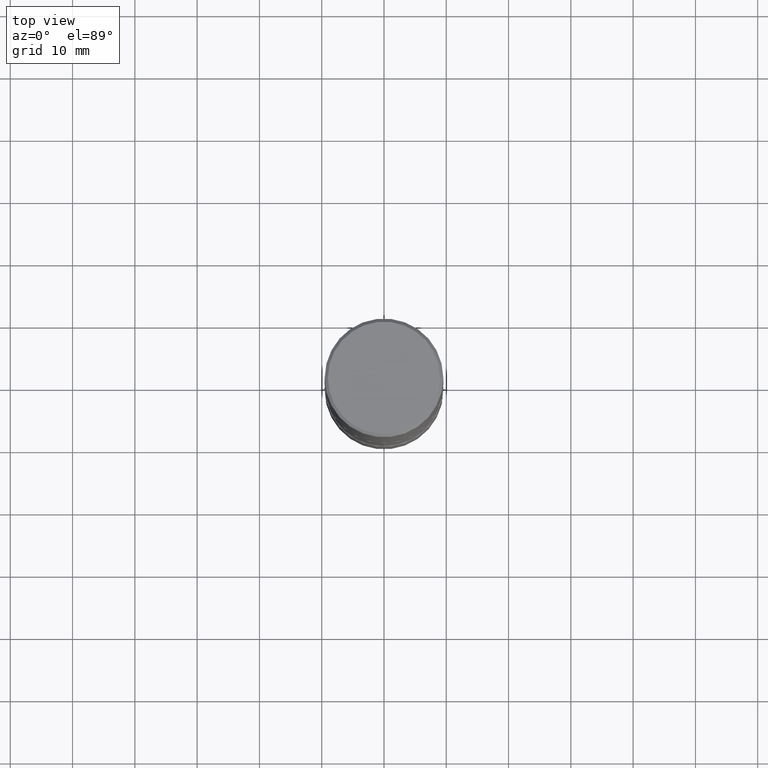
[diagram: clean part render]
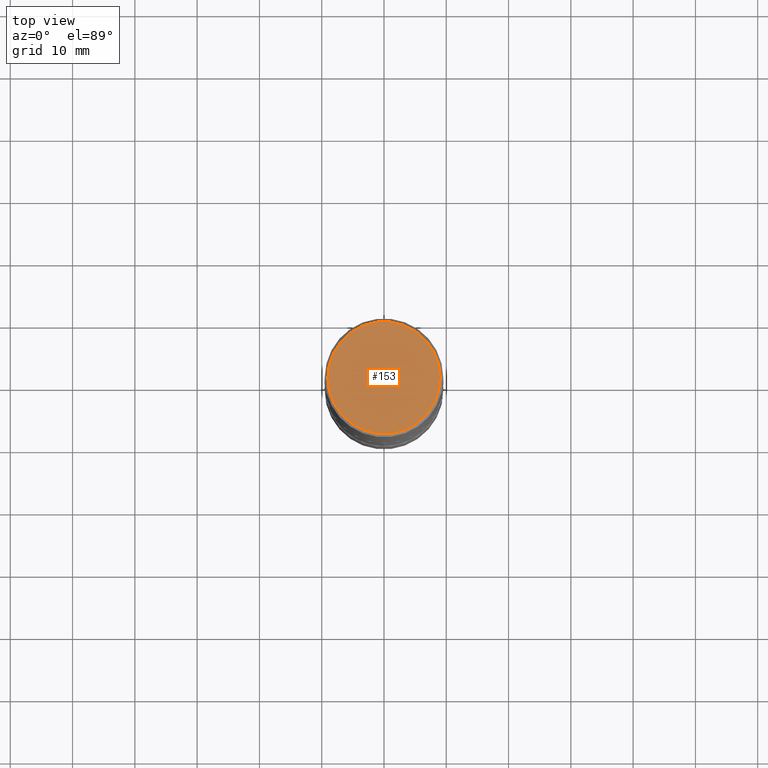
[diagram: same view with one face highlighted and labeled with its STEP entity id]
A machine part, top view. The second image highlights one B-rep face of the part: STEP entity #153.
In plain terms, the highlighted planar face has unit normal (0, -0, -1).
Its self-contained STEP definition (entity closure, byte-faithful):
#14 = CIRCLE ( 'NONE', #44, 0.3550000000000002598 ) ;
#22 = CARTESIAN_POINT ( 'NONE',  ( -0.3550000000000002598, 2.513866563967057436E-15, 4.268512490082953109E-18 ) ) ;
#44 = AXIS2_PLACEMENT_3D ( 'NONE', #447, #321, #106 ) ;
#45 = FACE_OUTER_BOUND ( 'NONE', #381, .T. ) ;
#106 = DIRECTION ( 'NONE',  ( 1.000000000000000000, -6.982962677686265922E-15, 4.876231632511984259E-29 ) ) ;
#153 = ADVANCED_FACE ( 'NONE', ( #45 ), #227, .F. ) ;
#158 = CARTESIAN_POINT ( 'NONE',  ( 0.3550000000000002598, -2.538996582575043020E-15, 4.268512490117958041E-18 ) ) ;
#159 = EDGE_CURVE ( 'NONE', #461, #336, #14, .T. ) ;
#191 = AXIS2_PLACEMENT_3D ( 'NONE', #359, #353, #496 ) ;
#227 = PLANE ( 'NONE',  #191 ) ;
#248 = DIRECTION ( 'NONE',  ( 1.000000000000000000, -6.982962677686265922E-15, 4.876231632511984259E-29 ) ) ;
#288 = AXIS2_PLACEMENT_3D ( 'NONE', #334, #456, #248 ) ;
#321 = DIRECTION ( 'NONE',  ( -2.445468806185136597E-29, 3.491481338843145583E-15, 1.000000000000000000 ) ) ;
#334 = CARTESIAN_POINT ( 'NONE',  ( -1.043851414335219820E-46, 1.490343170380447200E-32, 4.268512490100411279E-18 ) ) ;
#336 = VERTEX_POINT ( 'NONE', #22 ) ;
#353 = DIRECTION ( 'NONE',  ( 2.438088387897960049E-29, -3.491481338843145188E-15, -1.000000000000000000 ) ) ;
#359 = CARTESIAN_POINT ( 'NONE',  ( 2.478951750578626181E-15, 0.3550000000000002598, -1.237341619044267413E-15 ) ) ;
#381 = EDGE_LOOP ( 'NONE', ( #389, #560 ) ) ;
#389 = ORIENTED_EDGE ( 'NONE', *, *, #552, .T. ) ;
#447 = CARTESIAN_POINT ( 'NONE',  ( -1.043851414335219820E-46, 1.490343170380447200E-32, 4.268512490100411279E-18 ) ) ;
#456 = DIRECTION ( 'NONE',  ( -2.445468806185136597E-29, 3.491481338843145583E-15, 1.000000000000000000 ) ) ;
#461 = VERTEX_POINT ( 'NONE', #158 ) ;
#496 = DIRECTION ( 'NONE',  ( -1.000000000000000000, 6.982962677686265922E-15, -4.876176775795935793E-29 ) ) ;
#529 = CIRCLE ( 'NONE', #288, 0.3550000000000002598 ) ;
#552 = EDGE_CURVE ( 'NONE', #336, #461, #529, .T. ) ;
#560 = ORIENTED_EDGE ( 'NONE', *, *, #159, .T. ) ;